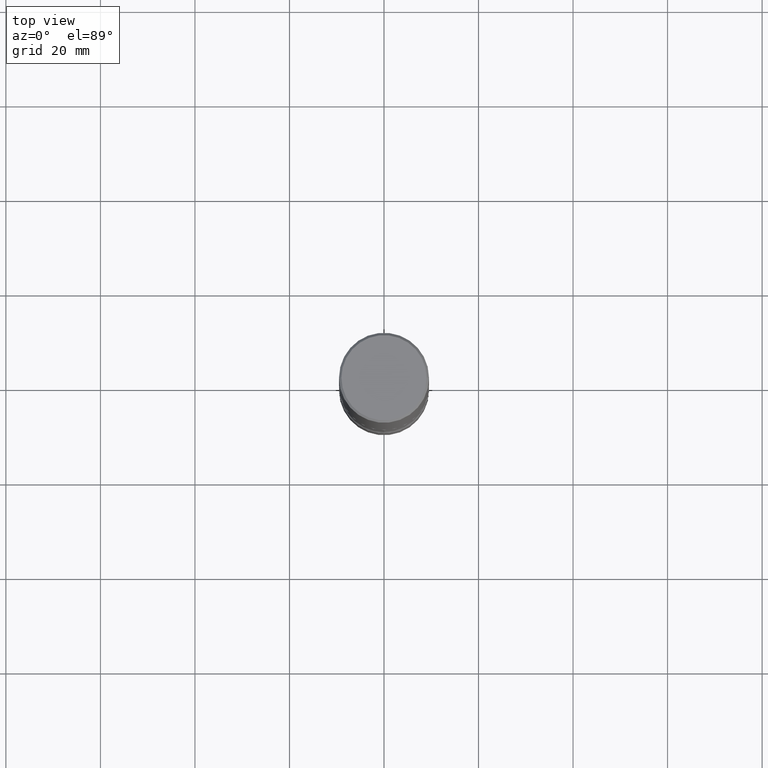
[diagram: clean part render]
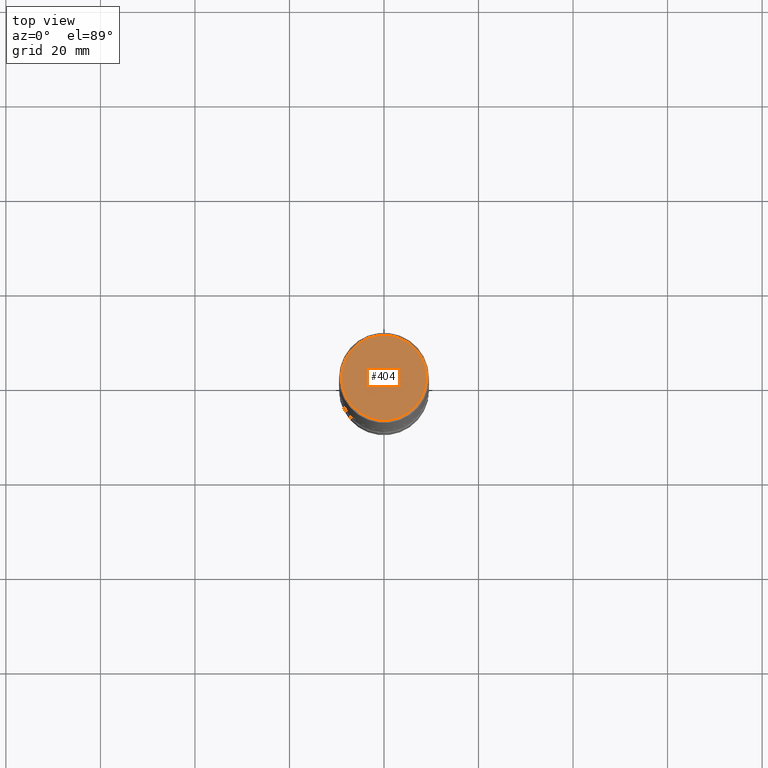
[diagram: same view with one face highlighted and labeled with its STEP entity id]
A machine part, top view. The second image highlights one B-rep face of the part: STEP entity #404.
In plain terms, the highlighted planar face has unit normal (0, -0, -1).
Its self-contained STEP definition (entity closure, byte-faithful):
#25 = CARTESIAN_POINT ( 'NONE',  ( -1.043851414335219820E-46, 1.490343170380447200E-32, 4.268512490100411279E-18 ) ) ;
#69 = DIRECTION ( 'NONE',  ( 1.000000000000000000, -6.982962677686265922E-15, 4.876231632511976973E-29 ) ) ;
#82 = VERTEX_POINT ( 'NONE', #176 ) ;
#118 = CARTESIAN_POINT ( 'NONE',  ( -1.043851414335219820E-46, 1.490343170380447200E-32, 4.268512490100411279E-18 ) ) ;
#120 = VERTEX_POINT ( 'NONE', #427 ) ;
#122 = AXIS2_PLACEMENT_3D ( 'NONE', #376, #161, #249 ) ;
#161 = DIRECTION ( 'NONE',  ( 2.438088387897960049E-29, -3.491481338843145188E-15, -1.000000000000000000 ) ) ;
#164 = AXIS2_PLACEMENT_3D ( 'NONE', #25, #458, #551 ) ;
#176 = CARTESIAN_POINT ( 'NONE',  ( 0.3550000000000008149, -2.538996582575045781E-15, 4.268512490117958041E-18 ) ) ;
#249 = DIRECTION ( 'NONE',  ( -1.000000000000000000, 6.982962677686265922E-15, -4.876176775795935793E-29 ) ) ;
#256 = FACE_OUTER_BOUND ( 'NONE', #437, .T. ) ;
#310 = ORIENTED_EDGE ( 'NONE', *, *, #383, .T. ) ;
#332 = PLANE ( 'NONE',  #122 ) ;
#358 = AXIS2_PLACEMENT_3D ( 'NONE', #118, #417, #69 ) ;
#364 = EDGE_CURVE ( 'NONE', #82, #120, #392, .T. ) ;
#376 = CARTESIAN_POINT ( 'NONE',  ( 2.478951750578629731E-15, 0.3550000000000008149, -1.237341619044269188E-15 ) ) ;
#383 = EDGE_CURVE ( 'NONE', #120, #82, #520, .T. ) ;
#392 = CIRCLE ( 'NONE', #358, 0.3550000000000008149 ) ;
#404 = ADVANCED_FACE ( 'NONE', ( #256 ), #332, .F. ) ;
#417 = DIRECTION ( 'NONE',  ( -2.445468806185136597E-29, 3.491481338843145583E-15, 1.000000000000000000 ) ) ;
#427 = CARTESIAN_POINT ( 'NONE',  ( -0.3550000000000008149, 2.513866563967061380E-15, 4.268512490082953109E-18 ) ) ;
#437 = EDGE_LOOP ( 'NONE', ( #310, #461 ) ) ;
#458 = DIRECTION ( 'NONE',  ( -2.445468806185136597E-29, 3.491481338843145583E-15, 1.000000000000000000 ) ) ;
#461 = ORIENTED_EDGE ( 'NONE', *, *, #364, .T. ) ;
#520 = CIRCLE ( 'NONE', #164, 0.3550000000000008149 ) ;
#551 = DIRECTION ( 'NONE',  ( 1.000000000000000000, -6.982962677686265922E-15, 4.876231632511976973E-29 ) ) ;